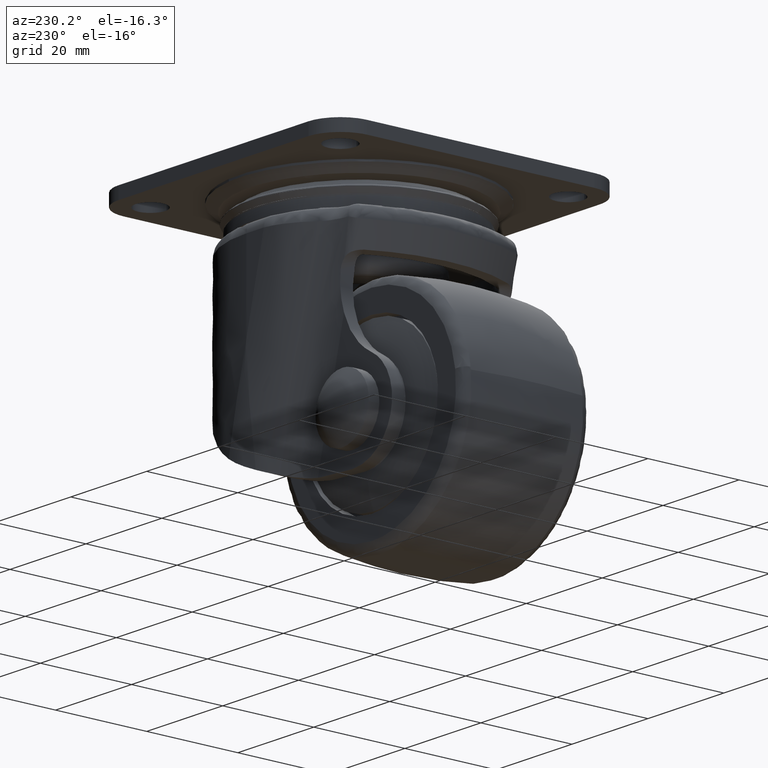
[diagram: clean part render]
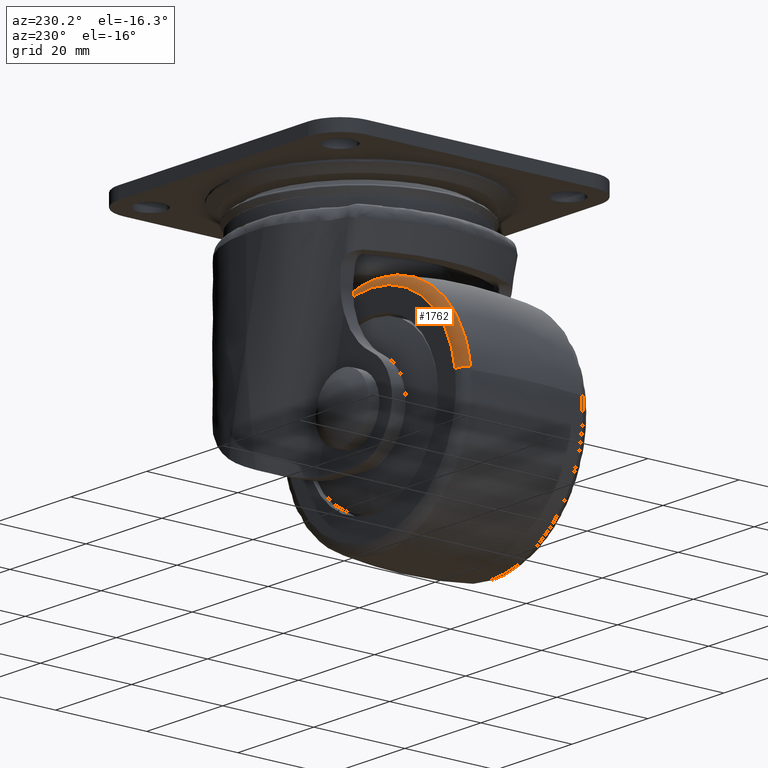
[diagram: same view with one face highlighted and labeled with its STEP entity id]
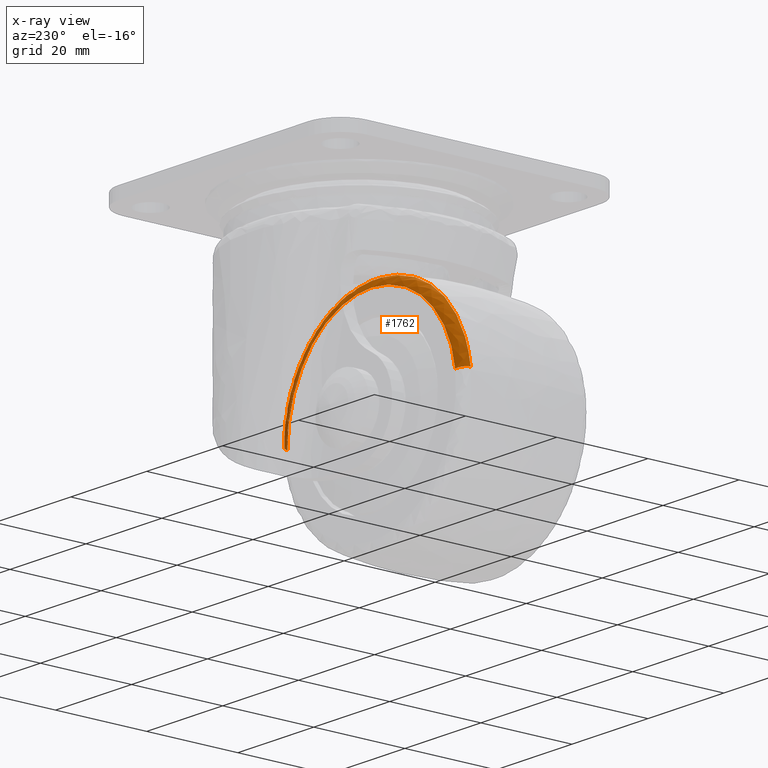
[diagram: x-ray of the same camera — body ghosted, the highlighted face saturated]
A machine part, auxiliary view. The second image highlights one B-rep face of the part: STEP entity #1762.
The next image is the same camera in x-ray: the body ghosted, the highlighted face saturated — about 2% of this face is hidden behind the body in this view.
In plain terms, the highlighted face is a freeform B-spline surface patch.
Its self-contained STEP definition (entity closure, byte-faithful):
#1643=CARTESIAN_POINT('',(22.126279626554027,13.995728345069347,-47.498095139863516));
#1644=CARTESIAN_POINT('',(22.569829186502727,13.995728345069349,-27.794828020355119));
#1645=CARTESIAN_POINT('',(3.049558914951511,13.995728345069354,-25.079221288807837));
#1646=CARTESIAN_POINT('',(-18.871219796240656,13.995728345069349,-22.029662373856333));
#1647=CARTESIAN_POINT('',(-21.920778711192163,13.995728345069354,-43.950441085048475));
#1648=CARTESIAN_POINT('',(24.137338572347502,14.127411265094121,-47.543367038428727));
#1649=CARTESIAN_POINT('',(24.621202379674994,14.127411265094119,-26.049268732167580));
#1650=CARTESIAN_POINT('',(3.326733516382351,14.127411265094121,-23.086840334126418));
#1651=CARTESIAN_POINT('',(-20.586426149491231,14.127411265094118,-19.760106817744067));
#1652=CARTESIAN_POINT('',(-23.913159665873586,14.127411265094121,-43.673266483617645));
#1653=CARTESIAN_POINT('',(24.253085583501917,12.114864654515037,-47.545972674110949));
#1654=CARTESIAN_POINT('',(24.739269687631641,12.114864654515033,-25.948802621602699));
#1655=CARTESIAN_POINT('',(3.342686371344978,12.114864654515040,-22.972168339519929));
#1656=CARTESIAN_POINT('',(-20.685145289135107,12.114864654515031,-19.629481968174947));
#1657=CARTESIAN_POINT('',(-24.027831660480079,12.114864654515040,-43.657313628655032));
#1665=(BOUNDED_SURFACE()B_SPLINE_SURFACE(2,2,((#1643,#1648,#1653),(#1644,#1649,#1654),(#1645,#1650,#1655),(#1646,#1651,#1656),(#1647,#1652,#1657)),.UNSPECIFIED.,.F.,.F.,.U.)B_SPLINE_SURFACE_WITH_KNOTS((3,2,3),(3,3),(0.0,36.978486122350802,77.172494652014407),(0.0,3.332247309591534),.UNSPECIFIED.)GEOMETRIC_REPRESENTATION_ITEM()RATIONAL_B_SPLINE_SURFACE(((0.873010405015493,0.615229187481973,0.874040182167559),(0.666503042068710,0.469699012371930,0.667289229267123),(0.912345165934879,0.642949238538870,0.913421341202985),(0.645125453615319,0.454633766529562,0.645886424445142),(0.912345165934879,0.642949238538870,0.913421341202985)))REPRESENTATION_ITEM('')SURFACE());
#1666=CARTESIAN_POINT('',(24.241339149692109,12.244901148250840,-47.545709782911771));
#1667=VERTEX_POINT('',#1666);
#1668=CARTESIAN_POINT('',(0.0,12.244904534424281,-22.752519866029939));
#1669=VERTEX_POINT('',#1668);
#1670=CARTESIAN_POINT('',(24.241339149692109,12.244901148250838,-47.545709782911771));
#1671=CARTESIAN_POINT('',(24.247480945206650,12.244901209804015,-47.272889656305118));
#1672=CARTESIAN_POINT('',(24.247480945206650,12.244901246803989,-47.000000405618302));
#1673=CARTESIAN_POINT('',(24.247480945206650,12.244904534424279,-22.752519866029939));
#1674=CARTESIAN_POINT('',(0.0,12.244904534424281,-22.752519866029939));
#1682=(BOUNDED_CURVE()B_SPLINE_CURVE(2,(#1670,#1671,#1672,#1673,#1674),.UNSPECIFIED.,.F.,.U.)B_SPLINE_CURVE_WITH_KNOTS((3,2,3),(0.246039454832439,0.250000000000000,0.500000000000000),.UNSPECIFIED.)CURVE()GEOMETRIC_REPRESENTATION_ITEM()RATIONAL_B_SPLINE_CURVE((0.990866882989583,0.995359932710469,1.0,0.707106781186548,1.0))REPRESENTATION_ITEM(''));
#1683=EDGE_CURVE('',#1667,#1669,#1682,.T.);
#1684=ORIENTED_EDGE('',*,*,#1683,.F.);
#1685=CARTESIAN_POINT('',(22.256892161499550,13.999999999999989,-47.501036832793112));
#1686=VERTEX_POINT('',#1685);
#1687=CARTESIAN_POINT('',(22.256892161499547,13.999999999999991,-47.501036832793105));
#1688=CARTESIAN_POINT('',(24.024851353840138,14.000000285718789,-47.540836310052221));
#1689=CARTESIAN_POINT('',(24.241339149692120,12.244901148250840,-47.545709782911764));
#1697=(BOUNDED_CURVE()B_SPLINE_CURVE(2,(#1687,#1688,#1689),.UNSPECIFIED.,.F.,.U.)B_SPLINE_CURVE_WITH_KNOTS((3,3),(-1.707209622127715,-0.289682166341142),.UNSPECIFIED.)CURVE()GEOMETRIC_REPRESENTATION_ITEM()RATIONAL_B_SPLINE_CURVE((0.850662340391915,0.637624018164172,0.851598651421920))REPRESENTATION_ITEM(''));
#1698=EDGE_CURVE('',#1686,#1667,#1697,.T.);
#1699=ORIENTED_EDGE('',*,*,#1698,.F.);
#1700=CARTESIAN_POINT('',(0.0,14.0,-24.737469000000001));
#1701=VERTEX_POINT('',#1700);
#1702=CARTESIAN_POINT('',(22.256892161499550,13.999999999999991,-47.501036832793112));
#1703=CARTESIAN_POINT('',(22.262531000000003,14.000000000000002,-47.250550147113941));
#1704=CARTESIAN_POINT('',(22.262530999999999,14.0,-47.0));
#1705=CARTESIAN_POINT('',(22.262530999999996,13.999999999999998,-24.737468999999994));
#1706=CARTESIAN_POINT('',(0.0,14.0,-24.737469000000001));
#1714=(BOUNDED_CURVE()B_SPLINE_CURVE(2,(#1702,#1703,#1704,#1705,#1706),.UNSPECIFIED.,.F.,.U.)B_SPLINE_CURVE_WITH_KNOTS((3,2,3),(0.246039451968638,0.250000000000000,0.500000000000000),.UNSPECIFIED.)CURVE()GEOMETRIC_REPRESENTATION_ITEM()RATIONAL_B_SPLINE_CURVE((0.990866876491890,0.995359929355316,1.0,0.707106781186548,1.0))REPRESENTATION_ITEM(''));
#1715=EDGE_CURVE('',#1686,#1701,#1714,.T.);
#1716=ORIENTED_EDGE('',*,*,#1715,.T.);
#1717=CARTESIAN_POINT('',(-22.050178201070128,13.999999999999989,-43.932439380839327));
#1718=VERTEX_POINT('',#1717);
#1719=CARTESIAN_POINT('',(0.0,14.0,-24.737469000000001));
#1720=CARTESIAN_POINT('',(-19.379826294725490,13.999999999999995,-24.737469000000001));
#1721=CARTESIAN_POINT('',(-22.050178201070125,13.999999999999991,-43.932439380839313));
#1729=(BOUNDED_CURVE()B_SPLINE_CURVE(2,(#1719,#1720,#1721),.UNSPECIFIED.,.F.,.U.)B_SPLINE_CURVE_WITH_KNOTS((3,3),(0.500000000000000,0.726207390888602),.UNSPECIFIED.)CURVE()GEOMETRIC_REPRESENTATION_ITEM()RATIONAL_B_SPLINE_CURVE((1.0,0.734981556652978,0.949556158161065))REPRESENTATION_ITEM(''));
#1730=EDGE_CURVE('',#1701,#1718,#1729,.T.);
#1731=ORIENTED_EDGE('',*,*,#1730,.T.);
#1732=CARTESIAN_POINT('',(-24.016193005956570,12.244910603777591,-43.658932766511420));
#1733=VERTEX_POINT('',#1732);
#1734=CARTESIAN_POINT('',(-22.050178201070132,13.999999999999982,-43.932439380839320));
#1735=CARTESIAN_POINT('',(-23.801708795009741,14.000000275600010,-43.688771224635296));
#1736=CARTESIAN_POINT('',(-24.016193005956570,12.244910603777596,-43.658932766511406));
#1744=(BOUNDED_CURVE()B_SPLINE_CURVE(2,(#1734,#1735,#1736),.UNSPECIFIED.,.F.,.U.)B_SPLINE_CURVE_WITH_KNOTS((3,3),(-1.707209616009413,-0.289687279178373),.UNSPECIFIED.)CURVE()GEOMETRIC_REPRESENTATION_ITEM()RATIONAL_B_SPLINE_CURVE((0.888990155026365,0.666353890361487,0.889967041721082))REPRESENTATION_ITEM(''));
#1745=EDGE_CURVE('',#1718,#1733,#1744,.T.);
#1746=ORIENTED_EDGE('',*,*,#1745,.T.);
#1747=CARTESIAN_POINT('',(0.0,12.244904534424281,-22.752519866029939));
#1748=CARTESIAN_POINT('',(-21.107750611526829,12.244907539588667,-22.752519558106254));
#1749=CARTESIAN_POINT('',(-24.016193005956559,12.244910603777594,-43.658932766511420));
#1757=(BOUNDED_CURVE()B_SPLINE_CURVE(2,(#1747,#1748,#1749),.UNSPECIFIED.,.F.,.U.)B_SPLINE_CURVE_WITH_KNOTS((3,3),(0.500000000000000,0.726207391063455),.UNSPECIFIED.)CURVE()GEOMETRIC_REPRESENTATION_ITEM()RATIONAL_B_SPLINE_CURVE((1.0,0.734981556448125,0.949556158492788))REPRESENTATION_ITEM(''));
#1758=EDGE_CURVE('',#1669,#1733,#1757,.T.);
#1759=ORIENTED_EDGE('',*,*,#1758,.F.);
#1760=EDGE_LOOP('',(#1684,#1699,#1716,#1731,#1746,#1759));
#1761=FACE_OUTER_BOUND('',#1760,.T.);
#1762=ADVANCED_FACE('',(#1761),#1665,.T.);